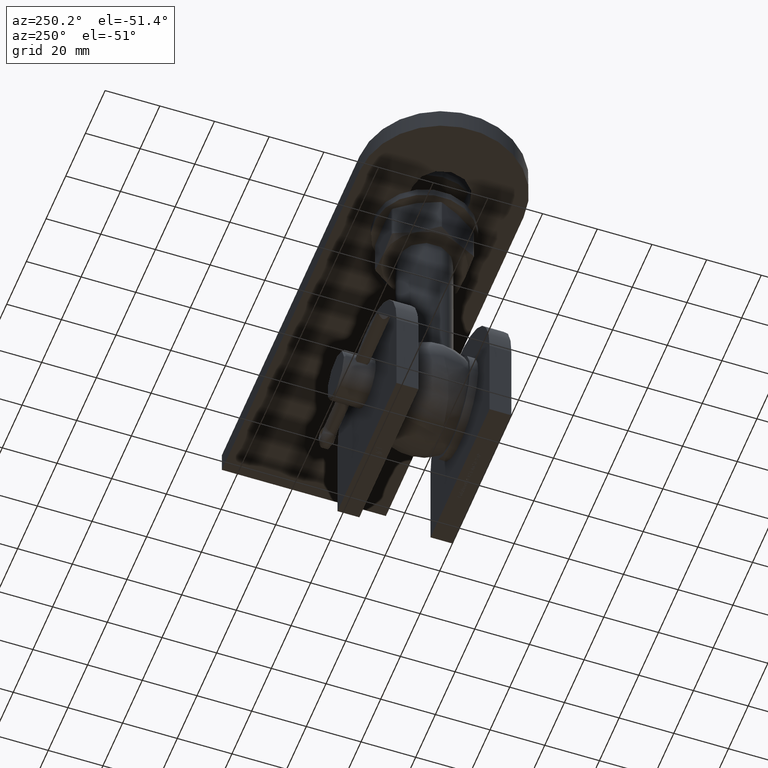
[diagram: clean part render]
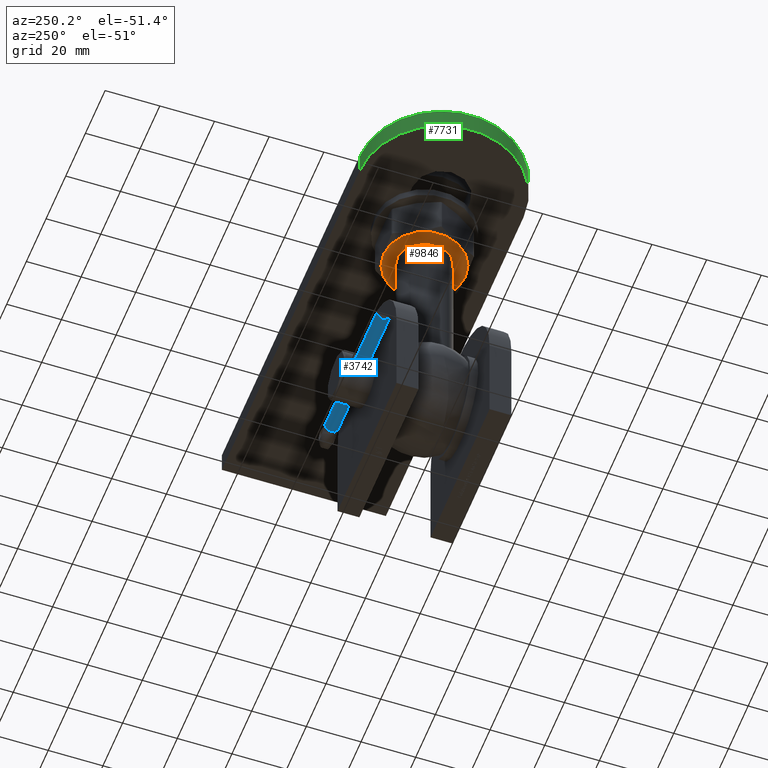
[diagram: same view with three faces highlighted in distinct colors, each labeled with its STEP entity id]
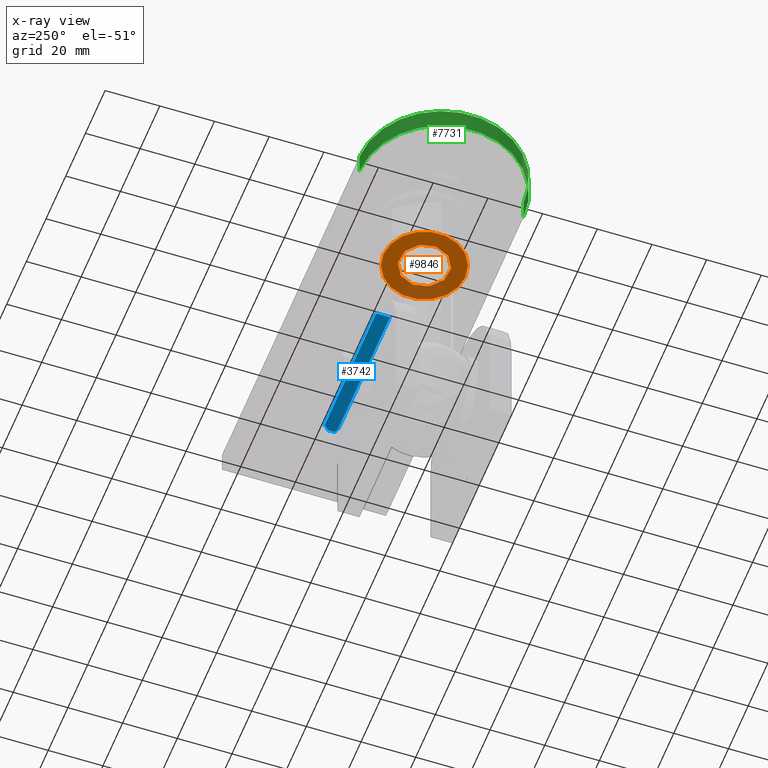
[diagram: x-ray of the same camera — body ghosted, the three highlighted faces saturated]
A machine part, auxiliary view with three faces highlighted in distinct colors.
The next image is the same camera in x-ray (body ghosted, the three faces saturated) — at least one of them is partly hidden behind the body in this view.
Their STEP definitions:

[orange] entity #9846 — the highlighted planar face has unit normal (0, 0, 1).
#174 = AXIS2_PLACEMENT_3D ( 'NONE', #8331, #18461, #18355 ) ;
#290 = ORIENTED_EDGE ( 'NONE', *, *, #8351, .T. ) ;
#482 = FACE_BOUND ( 'NONE', #20992, .T. ) ;
#711 = DIRECTION ( 'NONE',  ( -0.000000000000000000, -1.000000000000000000, -1.029231301106134717E-41 ) ) ;
#3347 = EDGE_CURVE ( 'NONE', #28709, #28645, #9210, .T. ) ;
#3379 = AXIS2_PLACEMENT_3D ( 'NONE', #28338, #21674, #26857 ) ;
#3432 = DIRECTION ( 'NONE',  ( -0.000000000000000000, -1.000000000000000000, -1.029231301106134717E-41 ) ) ;
#3479 = ORIENTED_EDGE ( 'NONE', *, *, #4085, .T. ) ;
#3715 = CIRCLE ( 'NONE', #11820, 14.99999999999989875 ) ;
#3822 = VERTEX_POINT ( 'NONE', #17051 ) ;
#4002 = AXIS2_PLACEMENT_3D ( 'NONE', #8098, #711, #25355 ) ;
#4085 = EDGE_CURVE ( 'NONE', #11605, #6840, #25191, .T. ) ;
#4633 = ORIENTED_EDGE ( 'NONE', *, *, #9097, .T. ) ;
#5497 = AXIS2_PLACEMENT_3D ( 'NONE', #19724, #10131, #19815 ) ;
#5759 = AXIS2_PLACEMENT_3D ( 'NONE', #23551, #21006, #25787 ) ;
#6078 = CIRCLE ( 'NONE', #11476, 14.99999999999989875 ) ;
#6096 = DIRECTION ( 'NONE',  ( -6.320590296112837812E-39, 0.000000000000000000, 1.000000000000000000 ) ) ;
#6840 = VERTEX_POINT ( 'NONE', #15159 ) ;
#7809 = ORIENTED_EDGE ( 'NONE', *, *, #25009, .T. ) ;
#7957 = DIRECTION ( 'NONE',  ( -6.320590296112837812E-39, 0.000000000000000000, 1.000000000000000000 ) ) ;
#8098 = CARTESIAN_POINT ( 'NONE',  ( -3.697785493223492838E-29, -7.999999999999979572, 0.000000000000000000 ) ) ;
#8270 = CARTESIAN_POINT ( 'NONE',  ( -12.99038105676658006, -7.999999999999992895, -7.499999999999946709 ) ) ;
#8331 = CARTESIAN_POINT ( 'NONE',  ( -3.697785493223492838E-29, -7.999999999999979572, 0.000000000000000000 ) ) ;
#8351 = EDGE_CURVE ( 'NONE', #3822, #11605, #3715, .T. ) ;
#9097 = EDGE_CURVE ( 'NONE', #14837, #28709, #23136, .T. ) ;
#9210 = CIRCLE ( 'NONE', #3379, 14.99999999999989875 ) ;
#9846 = ADVANCED_FACE ( 'NONE', ( #482, #10414 ), #14820, .F. ) ;
#10131 = DIRECTION ( 'NONE',  ( 1.301069886582539834E-79, 1.000000000000000000, -1.029231301106120443E-41 ) ) ;
#10405 = CARTESIAN_POINT ( 'NONE',  ( -3.697785493223492838E-29, -7.999999999999979572, 0.000000000000000000 ) ) ;
#10414 = FACE_OUTER_BOUND ( 'NONE', #15453, .T. ) ;
#11476 = AXIS2_PLACEMENT_3D ( 'NONE', #10405, #17850, #7957 ) ;
#11605 = VERTEX_POINT ( 'NONE', #8270 ) ;
#11820 = AXIS2_PLACEMENT_3D ( 'NONE', #13373, #3432, #6096 ) ;
#12998 = CARTESIAN_POINT ( 'NONE',  ( -3.697785493223492838E-29, -7.999999999999979572, 0.000000000000000000 ) ) ;
#13373 = CARTESIAN_POINT ( 'NONE',  ( -3.697785493223492838E-29, -7.999999999999979572, 0.000000000000000000 ) ) ;
#14820 = PLANE ( 'NONE',  #5497 ) ;
#14837 = VERTEX_POINT ( 'NONE', #26457 ) ;
#15159 = CARTESIAN_POINT ( 'NONE',  ( -1.502314598737194333E-15, -7.999999999999979572, -14.99999999999989519 ) ) ;
#15233 = ORIENTED_EDGE ( 'NONE', *, *, #3347, .T. ) ;
#15453 = EDGE_LOOP ( 'NONE', ( #15233, #25274, #290, #3479, #30649, #4633 ) ) ;
#16200 = EDGE_CURVE ( 'NONE', #28645, #3822, #6078, .T. ) ;
#17051 = CARTESIAN_POINT ( 'NONE',  ( -12.99038105676658006, -7.999999999999992895, 7.499999999999946709 ) ) ;
#17850 = DIRECTION ( 'NONE',  ( -0.000000000000000000, -1.000000000000000000, -1.029231301106134717E-41 ) ) ;
#18355 = DIRECTION ( 'NONE',  ( 8.881784197001252323E-16, 0.000000000000000000, 1.000000000000000000 ) ) ;
#18461 = DIRECTION ( 'NONE',  ( -0.000000000000000000, -1.000000000000000000, -1.029231301106134717E-41 ) ) ;
#18644 = VERTEX_POINT ( 'NONE', #23087 ) ;
#19724 = CARTESIAN_POINT ( 'NONE',  ( -3.697785493223492838E-29, -7.999999999999979572, 0.000000000000000000 ) ) ;
#19815 = DIRECTION ( 'NONE',  ( -6.320590353131817424E-39, 1.029231301106120443E-41, 1.000000000000000000 ) ) ;
#20992 = EDGE_LOOP ( 'NONE', ( #7809 ) ) ;
#21006 = DIRECTION ( 'NONE',  ( 0.000000000000000000, -1.000000000000000000, -1.029231301106134717E-41 ) ) ;
#21674 = DIRECTION ( 'NONE',  ( -0.000000000000000000, -1.000000000000000000, -1.029231301106134717E-41 ) ) ;
#23087 = CARTESIAN_POINT ( 'NONE',  ( -3.697785499070039056E-29, -7.999999999999979572, 9.249999999999939604 ) ) ;
#23136 = CIRCLE ( 'NONE', #174, 14.99999999999989875 ) ;
#23316 = CARTESIAN_POINT ( 'NONE',  ( 12.99038105676658006, -7.999999999999979572, 7.499999999999946709 ) ) ;
#23551 = CARTESIAN_POINT ( 'NONE',  ( -3.697785493223492838E-29, -7.999999999999979572, 0.000000000000000000 ) ) ;
#24662 = EDGE_CURVE ( 'NONE', #6840, #14837, #24951, .T. ) ;
#24951 = CIRCLE ( 'NONE', #5759, 14.99999999999989875 ) ;
#25009 = EDGE_CURVE ( 'NONE', #18644, #18644, #30246, .T. ) ;
#25102 = DIRECTION ( 'NONE',  ( 0.000000000000000000, 1.000000000000000000, 1.029231301106134717E-41 ) ) ;
#25191 = CIRCLE ( 'NONE', #4002, 14.99999999999989875 ) ;
#25274 = ORIENTED_EDGE ( 'NONE', *, *, #16200, .T. ) ;
#25355 = DIRECTION ( 'NONE',  ( 1.776356839400250465E-15, 0.000000000000000000, 1.000000000000000000 ) ) ;
#25787 = DIRECTION ( 'NONE',  ( 6.320590296112837812E-39, 0.000000000000000000, -1.000000000000000000 ) ) ;
#26457 = CARTESIAN_POINT ( 'NONE',  ( 12.99038105676657473, -7.999999999999979572, -7.499999999999953815 ) ) ;
#26857 = DIRECTION ( 'NONE',  ( -8.881784197001252323E-16, 0.000000000000000000, 1.000000000000000000 ) ) ;
#27249 = DIRECTION ( 'NONE',  ( -6.320590453916717531E-39, 0.000000000000000000, 1.000000000000000000 ) ) ;
#28338 = CARTESIAN_POINT ( 'NONE',  ( -3.697785493223492838E-29, -7.999999999999979572, 0.000000000000000000 ) ) ;
#28645 = VERTEX_POINT ( 'NONE', #30595 ) ;
#28709 = VERTEX_POINT ( 'NONE', #23316 ) ;
#29624 = AXIS2_PLACEMENT_3D ( 'NONE', #12998, #25102, #27249 ) ;
#30246 = CIRCLE ( 'NONE', #29624, 9.249999999999939604 ) ;
#30595 = CARTESIAN_POINT ( 'NONE',  ( -1.502314598737194333E-15, -7.999999999999979572, 14.99999999999989519 ) ) ;
#30649 = ORIENTED_EDGE ( 'NONE', *, *, #24662, .T. ) ;

[blue] entity #3742 — the highlighted cylindrical surface (edge-blend (fillet) strip) has radius 2.5 mm, axis along (-1, 0, -0).
#283 = DIRECTION ( 'NONE',  ( 1.000000000000000000, 0.000000000000000000, 0.000000000000000000 ) ) ;
#1240 = CARTESIAN_POINT ( 'NONE',  ( 0.000000000000000000, -2.499999999999995115, -49.48984831638264836 ) ) ;
#1552 = ORIENTED_EDGE ( 'NONE', *, *, #21037, .F. ) ;
#2187 = CARTESIAN_POINT ( 'NONE',  ( -2.404362253273413241, -3.184866523516801440, 3.479866523516841781 ) ) ;
#2299 =( BOUNDED_CURVE ( )  B_SPLINE_CURVE ( 3, ( #19042, #28814, #16724, #23940 ),
 .UNSPECIFIED., .F., .F. ) 
 B_SPLINE_CURVE_WITH_KNOTS ( ( 4, 4 ),
 ( 1.848290566995238082, 4.434894740184348372 ),
 .UNSPECIFIED. ) 
 CURVE ( )  GEOMETRIC_REPRESENTATION_ITEM ( )  RATIONAL_B_SPLINE_CURVE ( ( 1.000000000000000000, 0.5159644062711482571, 0.5159644062711482571, 1.000000000000000000 ) ) 
 REPRESENTATION_ITEM ( '' )  );
#2475 = CARTESIAN_POINT ( 'NONE',  ( 2.499979999919999418, -2.509999999999991349, -49.48984831638265547 ) ) ;
#2845 = CARTESIAN_POINT ( 'NONE',  ( 0.000000000000000000, -2.499999999999995115, -49.48984831638264836 ) ) ;
#3278 = CARTESIAN_POINT ( 'NONE',  ( -2.499979999919999418, -2.509999999999991349, 2.522837475662491613 ) ) ;
#3387 = CARTESIAN_POINT ( 'NONE',  ( -2.492941570271944407, -2.709835730078010929, 3.004835730078048606 ) ) ;
#3440 = ORIENTED_EDGE ( 'NONE', *, *, #12199, .F. ) ;
#3669 = CARTESIAN_POINT ( 'NONE',  ( 2.499979999919999862, -2.509999999999991793, 2.522857491853614853 ) ) ;
#3742 = ADVANCED_FACE ( 'NONE', ( #4638 ), #8450, .T. ) ;
#3982 = CARTESIAN_POINT ( 'NONE',  ( 2.440020302457554191, -3.059681740000934624, 3.354681740000975410 ) ) ;
#4139 = DIRECTION ( 'NONE',  ( 1.000000000000000000, 0.000000000000000000, 0.000000000000000000 ) ) ;
#4238 = CARTESIAN_POINT ( 'NONE',  ( -2.481583304665960554, -2.802893218813440779, 3.097893218813480232 ) ) ;
#4541 = CARTESIAN_POINT ( 'NONE',  ( 2.481583304665960554, -2.802893218813441667, 3.097893218813480676 ) ) ;
#4600 = VERTEX_POINT ( 'NONE', #29410 ) ;
#4638 = FACE_OUTER_BOUND ( 'NONE', #29734, .T. ) ;
#5086 = VERTEX_POINT ( 'NONE', #28749 ) ;
#5619 = ORIENTED_EDGE ( 'NONE', *, *, #30242, .T. ) ;
#6319 = EDGE_CURVE ( 'NONE', #7943, #20620, #17516, .T. ) ;
#6322 = CARTESIAN_POINT ( 'NONE',  ( 2.500244264023082863, -2.535997536544619901, 2.652479410236603385 ) ) ;
#6780 = CARTESIAN_POINT ( 'NONE',  ( -2.440020302457554635, -3.059681740000934180, 3.354681740000974521 ) ) ;
#7891 = ORIENTED_EDGE ( 'NONE', *, *, #17302, .T. ) ;
#7943 = VERTEX_POINT ( 'NONE', #16767 ) ;
#8092 = CARTESIAN_POINT ( 'NONE',  ( -2.481583304665960554, -2.802893218813440779, 3.097893218813480232 ) ) ;
#8115 = AXIS2_PLACEMENT_3D ( 'NONE', #2845, #19796, #283 ) ;
#8122 = DIRECTION ( 'NONE',  ( 0.000000000000000000, 0.000000000000000000, 1.000000000000000000 ) ) ;
#8450 = CYLINDRICAL_SURFACE ( 'NONE', #9511, 2.500000000000000000 ) ;
#8491 = ORIENTED_EDGE ( 'NONE', *, *, #6319, .F. ) ;
#8610 = CARTESIAN_POINT ( 'NONE',  ( -2.499979999919999418, -2.509999999999991349, -49.48984831638265547 ) ) ;
#9511 = AXIS2_PLACEMENT_3D ( 'NONE', #1240, #30515, #4139 ) ;
#9601 = EDGE_CURVE ( 'NONE', #30030, #28676, #16597, .T. ) ;
#10203 = LINE ( 'NONE', #14965, #24676 ) ;
#11906 =( BOUNDED_CURVE ( )  B_SPLINE_CURVE ( 3, ( #16345, #3982, #16460, #13703 ),
 .UNSPECIFIED., .F., .T. ) 
 B_SPLINE_CURVE_WITH_KNOTS ( ( 4, 4 ),
 ( 1.293302086594555256, 1.449340650918133910 ),
 .UNSPECIFIED. ) 
 CURVE ( )  GEOMETRIC_REPRESENTATION_ITEM ( )  RATIONAL_B_SPLINE_CURVE ( ( 1.000000000000000000, 0.9979720262079349036, 0.9979720262079349036, 1.000000000000000000 ) ) 
 REPRESENTATION_ITEM ( '' )  );
#12199 = EDGE_CURVE ( 'NONE', #22919, #21990, #11906, .T. ) ;
#12914 = CARTESIAN_POINT ( 'NONE',  ( -2.496777668008724138, -2.636460760914462575, 2.894851685498903926 ) ) ;
#13703 = CARTESIAN_POINT ( 'NONE',  ( 2.481583304665960554, -2.802893218813441667, 3.097893218813480676 ) ) ;
#13957 = CARTESIAN_POINT ( 'NONE',  ( -2.465812959754763778, -2.932098569774286290, 3.227098569774326187 ) ) ;
#14237 = DIRECTION ( 'NONE',  ( 0.000000000000000000, 0.000000000000000000, 1.000000000000000000 ) ) ;
#14965 = CARTESIAN_POINT ( 'NONE',  ( -2.499979999919999418, -2.509999999999991349, -49.48984831638265547 ) ) ;
#16304 = ORIENTED_EDGE ( 'NONE', *, *, #9601, .F. ) ;
#16345 = CARTESIAN_POINT ( 'NONE',  ( 2.404362253273412797, -3.184866523516801884, 3.479866523516842669 ) ) ;
#16395 = VECTOR ( 'NONE', #14237, 1000.000000000000000 ) ;
#16460 = CARTESIAN_POINT ( 'NONE',  ( 2.465812959754763778, -2.932098569774286734, 3.227098569774326631 ) ) ;
#16597 =( BOUNDED_CURVE ( )  B_SPLINE_CURVE ( 3, ( #4238, #13957, #6780, #2187 ),
 .UNSPECIFIED., .F., .F. ) 
 B_SPLINE_CURVE_WITH_KNOTS ( ( 4, 4 ),
 ( 4.833844656261452322, 4.989883220585030976 ),
 .UNSPECIFIED. ) 
 CURVE ( )  GEOMETRIC_REPRESENTATION_ITEM ( )  RATIONAL_B_SPLINE_CURVE ( ( 1.000000000000000000, 0.9979720262079349036, 0.9979720262079349036, 1.000000000000000000 ) ) 
 REPRESENTATION_ITEM ( '' )  );
#16724 = CARTESIAN_POINT ( 'NONE',  ( -1.553312737629604090, -6.172647734625132721, 1.687197796851864551 ) ) ;
#16767 = CARTESIAN_POINT ( 'NONE',  ( 2.499979999919999418, -2.509999999999991349, -49.48984831638265547 ) ) ;
#16933 = ORIENTED_EDGE ( 'NONE', *, *, #27399, .T. ) ;
#17302 = EDGE_CURVE ( 'NONE', #30030, #5086, #20182, .T. ) ;
#17516 = CIRCLE ( 'NONE', #8115, 2.500000000000000000 ) ;
#18055 = CARTESIAN_POINT ( 'NONE',  ( 2.496786850888323084, -2.636281413438419374, 2.894552099643775467 ) ) ;
#19042 = CARTESIAN_POINT ( 'NONE',  ( 2.404362253273412797, -3.184866523516801884, 3.479866523516842669 ) ) ;
#19045 = LINE ( 'NONE', #2475, #16395 ) ;
#19796 = DIRECTION ( 'NONE',  ( 0.000000000000000000, -1.193489751472043281E-14, -1.000000000000000000 ) ) ;
#20182 = B_SPLINE_CURVE_WITH_KNOTS ( 'NONE', 3,
 ( #8092, #3387, #12914, #24916, #3278, #20354 ),
 .UNSPECIFIED., .F., .F.,
 ( 4, 2, 4 ),
 ( 9.697399036122160616E-19, 0.0003905280839846530659, 0.0007810561679693051561 ),
 .UNSPECIFIED. ) ;
#20354 = CARTESIAN_POINT ( 'NONE',  ( -2.499979999919999418, -2.509999999999991349, 2.390786437626933658 ) ) ;
#20620 = VERTEX_POINT ( 'NONE', #8610 ) ;
#20934 = CARTESIAN_POINT ( 'NONE',  ( 2.499979999919999418, -2.509999999999991349, 2.390786437626933658 ) ) ;
#21037 = EDGE_CURVE ( 'NONE', #20620, #5086, #10203, .T. ) ;
#21430 = CARTESIAN_POINT ( 'NONE',  ( 2.404362253273412797, -3.184866523516801884, 3.479866523516842669 ) ) ;
#21990 = VERTEX_POINT ( 'NONE', #4541 ) ;
#22919 = VERTEX_POINT ( 'NONE', #21430 ) ;
#23337 = B_SPLINE_CURVE_WITH_KNOTS ( 'NONE', 3,
 ( #20934, #3669, #6322, #18055, #30258, #30455 ),
 .UNSPECIFIED., .F., .F.,
 ( 4, 2, 4 ),
 ( 0.000000000000000000, 0.0003906063436695469699, 0.0007812126873390939398 ),
 .UNSPECIFIED. ) ;
#23940 = CARTESIAN_POINT ( 'NONE',  ( -2.404362253273413241, -3.184866523516801440, 3.479866523516841781 ) ) ;
#24676 = VECTOR ( 'NONE', #8122, 1000.000000000000000 ) ;
#24916 = CARTESIAN_POINT ( 'NONE',  ( -2.500243165487229469, -2.536116148338790843, 2.652898665132439326 ) ) ;
#25896 = ORIENTED_EDGE ( 'NONE', *, *, #30413, .T. ) ;
#26912 = CARTESIAN_POINT ( 'NONE',  ( -2.481583304665960554, -2.802893218813440779, 3.097893218813480232 ) ) ;
#27399 = EDGE_CURVE ( 'NONE', #22919, #28676, #2299, .T. ) ;
#28676 = VERTEX_POINT ( 'NONE', #30489 ) ;
#28749 = CARTESIAN_POINT ( 'NONE',  ( -2.499979999919999418, -2.509999999999991349, 2.390786437626933658 ) ) ;
#28814 = CARTESIAN_POINT ( 'NONE',  ( 1.553312737629604090, -6.172647734625132721, 1.687197796851864551 ) ) ;
#29410 = CARTESIAN_POINT ( 'NONE',  ( 2.499979999919999418, -2.509999999999991349, 2.390786437626933658 ) ) ;
#29734 = EDGE_LOOP ( 'NONE', ( #3440, #16933, #16304, #7891, #1552, #8491, #25896, #5619 ) ) ;
#30030 = VERTEX_POINT ( 'NONE', #26912 ) ;
#30242 = EDGE_CURVE ( 'NONE', #4600, #21990, #23337, .T. ) ;
#30258 = CARTESIAN_POINT ( 'NONE',  ( 2.492942233587890133, -2.709830295576574954, 3.004830295576661925 ) ) ;
#30413 = EDGE_CURVE ( 'NONE', #7943, #4600, #19045, .T. ) ;
#30455 = CARTESIAN_POINT ( 'NONE',  ( 2.481583304665960554, -2.802893218813441667, 3.097893218813480676 ) ) ;
#30489 = CARTESIAN_POINT ( 'NONE',  ( -2.404362253273413241, -3.184866523516801440, 3.479866523516841781 ) ) ;
#30515 = DIRECTION ( 'NONE',  ( 0.000000000000000000, 0.000000000000000000, 1.000000000000000000 ) ) ;

[green] entity #7731 — the highlighted cylindrical surface (partial cylindrical patch) has radius 30 mm, axis along (-0, -0, -1).
#70 = AXIS2_PLACEMENT_3D ( 'NONE', #31340, #31233, #23842 ) ;
#1170 = AXIS2_PLACEMENT_3D ( 'NONE', #13006, #29979, #23017 ) ;
#1174 = CARTESIAN_POINT ( 'NONE',  ( -55.00000000000000000, 30.00000000000001421, 4.000000000000000000 ) ) ;
#4306 = CARTESIAN_POINT ( 'NONE',  ( -55.00000000000000000, 30.00000000000001421, 4.000000000000000000 ) ) ;
#5221 = LINE ( 'NONE', #28281, #12128 ) ;
#7115 = CARTESIAN_POINT ( 'NONE',  ( -55.00000000000000000, 1.302750038222445316E-14, 4.000000000000000000 ) ) ;
#7731 = ADVANCED_FACE ( 'NONE', ( #14802 ), #11366, .T. ) ;
#8169 = VECTOR ( 'NONE', #30454, 1000.000000000000000 ) ;
#9342 = EDGE_CURVE ( 'NONE', #20671, #20636, #28807, .T. ) ;
#9712 = LINE ( 'NONE', #1174, #8169 ) ;
#11366 = CYLINDRICAL_SURFACE ( 'NONE', #30743, 29.99999999999999289 ) ;
#12045 = CARTESIAN_POINT ( 'NONE',  ( -55.00000000000000000, 30.00000000000001421, -4.000000000000000000 ) ) ;
#12094 = EDGE_CURVE ( 'NONE', #12191, #20671, #9712, .T. ) ;
#12128 = VECTOR ( 'NONE', #21080, 1000.000000000000000 ) ;
#12191 = VERTEX_POINT ( 'NONE', #4306 ) ;
#13006 = CARTESIAN_POINT ( 'NONE',  ( -55.00000000000000000, 1.302750038222445316E-14, -4.000000000000000000 ) ) ;
#13542 = EDGE_LOOP ( 'NONE', ( #17887, #17528, #21322, #30783 ) ) ;
#14802 = FACE_OUTER_BOUND ( 'NONE', #13542, .T. ) ;
#17528 = ORIENTED_EDGE ( 'NONE', *, *, #21764, .F. ) ;
#17887 = ORIENTED_EDGE ( 'NONE', *, *, #9342, .T. ) ;
#20636 = VERTEX_POINT ( 'NONE', #28174 ) ;
#20671 = VERTEX_POINT ( 'NONE', #12045 ) ;
#21080 = DIRECTION ( 'NONE',  ( -0.000000000000000000, -0.000000000000000000, -1.000000000000000000 ) ) ;
#21322 = ORIENTED_EDGE ( 'NONE', *, *, #27368, .F. ) ;
#21627 = DIRECTION ( 'NONE',  ( -1.000000000000000000, 0.000000000000000000, 0.000000000000000000 ) ) ;
#21727 = DIRECTION ( 'NONE',  ( -0.000000000000000000, -0.000000000000000000, -1.000000000000000000 ) ) ;
#21764 = EDGE_CURVE ( 'NONE', #25351, #20636, #5221, .T. ) ;
#22941 = CARTESIAN_POINT ( 'NONE',  ( -54.99999999999998579, -29.99999999999999645, 4.000000000000000000 ) ) ;
#23017 = DIRECTION ( 'NONE',  ( -1.000000000000000000, 0.000000000000000000, 0.000000000000000000 ) ) ;
#23842 = DIRECTION ( 'NONE',  ( -1.000000000000000000, 0.000000000000000000, 0.000000000000000000 ) ) ;
#25351 = VERTEX_POINT ( 'NONE', #22941 ) ;
#27167 = CIRCLE ( 'NONE', #70, 29.99999999999999289 ) ;
#27368 = EDGE_CURVE ( 'NONE', #12191, #25351, #27167, .T. ) ;
#28174 = CARTESIAN_POINT ( 'NONE',  ( -54.99999999999998579, -29.99999999999999645, -4.000000000000000000 ) ) ;
#28281 = CARTESIAN_POINT ( 'NONE',  ( -54.99999999999998579, -29.99999999999999645, 4.000000000000000000 ) ) ;
#28807 = CIRCLE ( 'NONE', #1170, 29.99999999999999289 ) ;
#29979 = DIRECTION ( 'NONE',  ( 0.000000000000000000, 0.000000000000000000, 1.000000000000000000 ) ) ;
#30454 = DIRECTION ( 'NONE',  ( -0.000000000000000000, -0.000000000000000000, -1.000000000000000000 ) ) ;
#30743 = AXIS2_PLACEMENT_3D ( 'NONE', #7115, #21727, #21627 ) ;
#30783 = ORIENTED_EDGE ( 'NONE', *, *, #12094, .T. ) ;
#31233 = DIRECTION ( 'NONE',  ( 0.000000000000000000, 0.000000000000000000, 1.000000000000000000 ) ) ;
#31340 = CARTESIAN_POINT ( 'NONE',  ( -55.00000000000000000, 1.302750038222445316E-14, 4.000000000000000000 ) ) ;